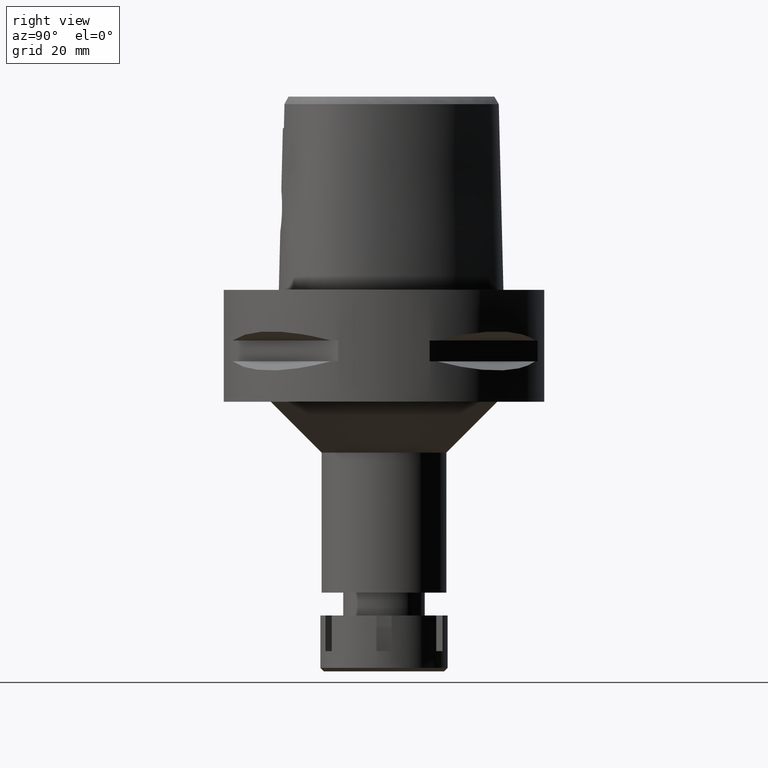
[diagram: clean part render]
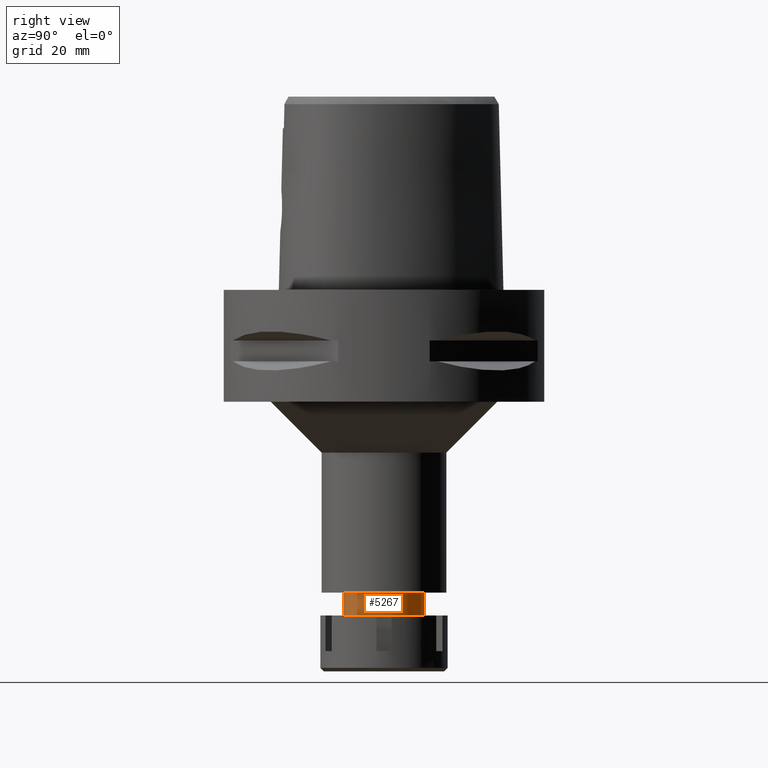
[diagram: same view with one face highlighted and labeled with its STEP entity id]
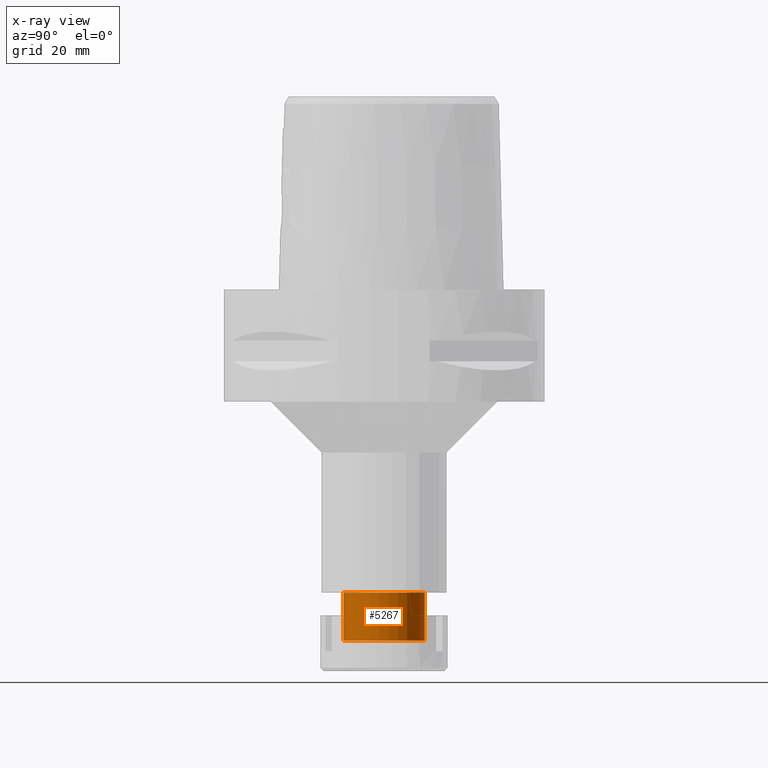
[diagram: x-ray of the same camera — body ghosted, the highlighted face saturated]
A machine part, right view. The second image highlights one B-rep face of the part: STEP entity #5267.
The next image is the same camera in x-ray: the body ghosted, the highlighted face saturated — about 0% of this face is hidden behind the body in this view.
In plain terms, the highlighted cylindrical surface (partial cylindrical patch) has radius 8 mm, axis along (0, 0, -1).
Its self-contained STEP definition (entity closure, byte-faithful):
#44 = CARTESIAN_POINT ( 'NONE',  ( 0.0000000000000000000, 8.000000000000000000, -59.50000000000000000 ) ) ;
#98 = LINE ( 'NONE', #1256, #1191 ) ;
#651 = DIRECTION ( 'NONE',  ( 0.0000000000000000000, 0.0000000000000000000, -1.000000000000000000 ) ) ;
#784 = CARTESIAN_POINT ( 'NONE',  ( 0.0000000000000000000, 8.000000000000000000, -59.50000000000000000 ) ) ;
#992 = CARTESIAN_POINT ( 'NONE',  ( 0.0000000000000000000, 1.266897113717999920E-14, -69.00000000000000000 ) ) ;
#1191 = VECTOR ( 'NONE', #651, 1000.000000000000000 ) ;
#1232 = FACE_OUTER_BOUND ( 'NONE', #2724, .T. ) ;
#1256 = CARTESIAN_POINT ( 'NONE',  ( 0.0000000000000000000, -8.000000000000000000, -59.50000000000000000 ) ) ;
#1525 = CARTESIAN_POINT ( 'NONE',  ( 0.0000000000000000000, 1.266897113717999920E-14, 3.449999999999999734 ) ) ;
#1916 = VERTEX_POINT ( 'NONE', #2150 ) ;
#2114 = ORIENTED_EDGE ( 'NONE', *, *, #5048, .F. ) ;
#2150 = CARTESIAN_POINT ( 'NONE',  ( 0.0000000000000000000, -8.000000000000000000, -69.00000000000000000 ) ) ;
#2262 = AXIS2_PLACEMENT_3D ( 'NONE', #1525, #2770, #3614 ) ;
#2330 = EDGE_CURVE ( 'NONE', #1916, #5049, #3904, .T. ) ;
#2420 = AXIS2_PLACEMENT_3D ( 'NONE', #992, #2675, #3520 ) ;
#2468 = DIRECTION ( 'NONE',  ( 0.0000000000000000000, 0.0000000000000000000, -1.000000000000000000 ) ) ;
#2504 = CYLINDRICAL_SURFACE ( 'NONE', #2262, 8.000000000000000000 ) ;
#2675 = DIRECTION ( 'NONE',  ( 0.0000000000000000000, 0.0000000000000000000, 1.000000000000000000 ) ) ;
#2724 = EDGE_LOOP ( 'NONE', ( #5205, #4467, #3870, #2114 ) ) ;
#2770 = DIRECTION ( 'NONE',  ( 0.0000000000000000000, 0.0000000000000000000, -1.000000000000000000 ) ) ;
#2882 = LINE ( 'NONE', #784, #4024 ) ;
#2967 = DIRECTION ( 'NONE',  ( 0.0000000000000000000, 0.0000000000000000000, -1.000000000000000000 ) ) ;
#3307 = AXIS2_PLACEMENT_3D ( 'NONE', #3374, #2967, #3866 ) ;
#3374 = CARTESIAN_POINT ( 'NONE',  ( 0.0000000000000000000, 1.266897113717999920E-14, -59.50000000000000000 ) ) ;
#3520 = DIRECTION ( 'NONE',  ( 0.0000000000000000000, -1.000000000000000000, 0.0000000000000000000 ) ) ;
#3614 = DIRECTION ( 'NONE',  ( 0.0000000000000000000, -1.000000000000000000, 0.0000000000000000000 ) ) ;
#3845 = VERTEX_POINT ( 'NONE', #44 ) ;
#3856 = VERTEX_POINT ( 'NONE', #5125 ) ;
#3866 = DIRECTION ( 'NONE',  ( 0.0000000000000000000, 1.000000000000000000, 0.0000000000000000000 ) ) ;
#3870 = ORIENTED_EDGE ( 'NONE', *, *, #2330, .T. ) ;
#3904 = CIRCLE ( 'NONE', #2420, 8.000000000000000000 ) ;
#4003 = EDGE_CURVE ( 'NONE', #3856, #1916, #98, .T. ) ;
#4024 = VECTOR ( 'NONE', #2468, 1000.000000000000000 ) ;
#4309 = EDGE_CURVE ( 'NONE', #3845, #3856, #4892, .T. ) ;
#4467 = ORIENTED_EDGE ( 'NONE', *, *, #4003, .T. ) ;
#4892 = CIRCLE ( 'NONE', #3307, 8.000000000000000000 ) ;
#5048 = EDGE_CURVE ( 'NONE', #3845, #5049, #2882, .T. ) ;
#5049 = VERTEX_POINT ( 'NONE', #5287 ) ;
#5125 = CARTESIAN_POINT ( 'NONE',  ( 0.0000000000000000000, -8.000000000000000000, -59.50000000000000000 ) ) ;
#5205 = ORIENTED_EDGE ( 'NONE', *, *, #4309, .T. ) ;
#5267 = ADVANCED_FACE ( 'NONE', ( #1232 ), #2504, .T. ) ;
#5287 = CARTESIAN_POINT ( 'NONE',  ( 0.0000000000000000000, 8.000000000000000000, -69.00000000000000000 ) ) ;